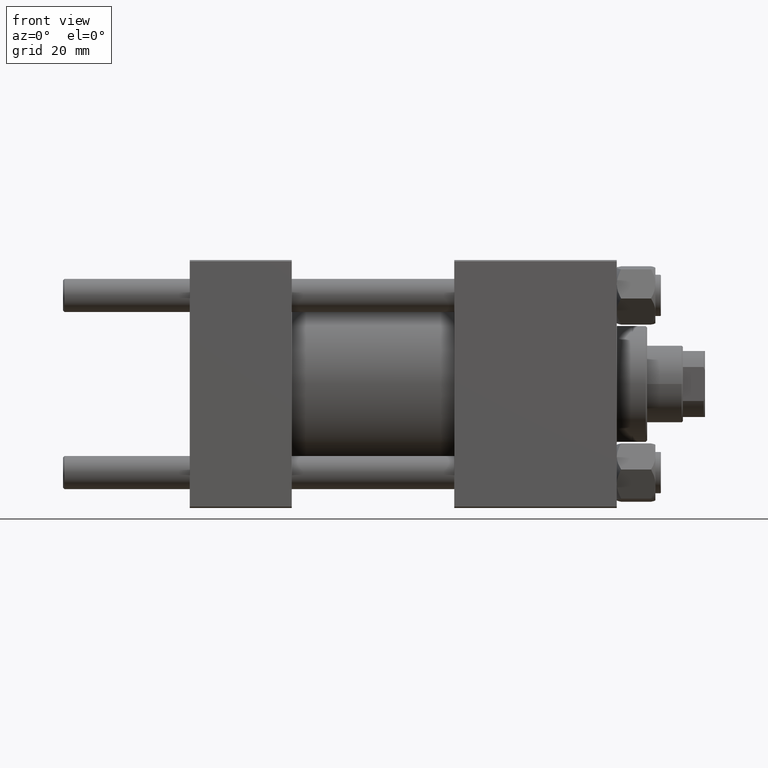
[diagram: clean part render]
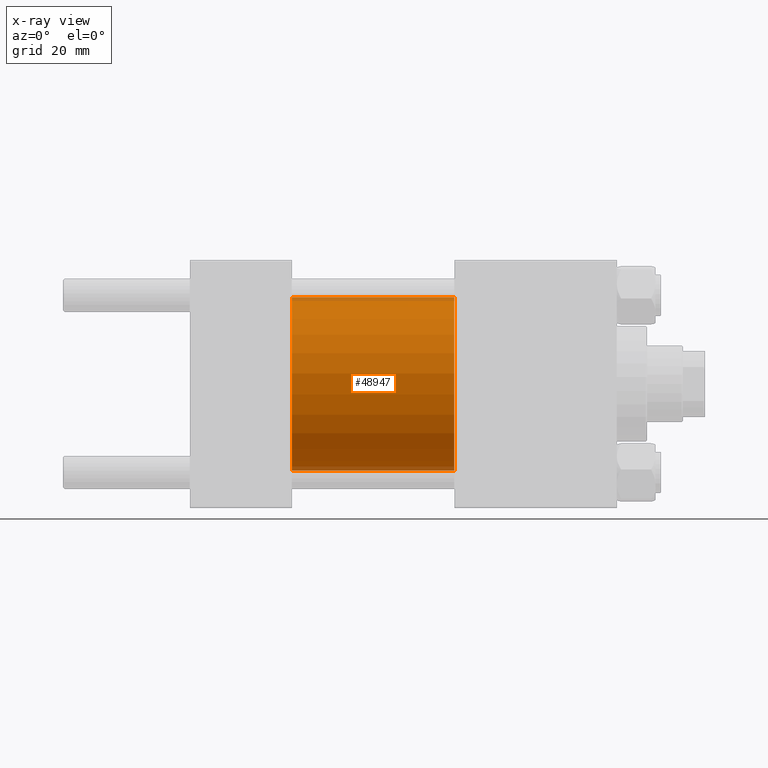
[diagram: x-ray — body ghosted, one internal face saturated and labeled with its STEP entity id]
A machine part, front view, then the same camera in x-ray: the body is ghosted and one INTERNAL B-rep face — a face not visible from any outside direction — is saturated and labeled: STEP entity #48947.
In plain terms, the highlighted cylindrical surface (partial cylindrical patch) has radius 31.5 mm, axis along (-1, -0, -0).
Its self-contained STEP definition (entity closure, byte-faithful):
#1770 = CARTESIAN_POINT ( 'NONE',  ( 96.00000000000000000, 0.000000000000000000, 0.000000000000000000 ) ) ;
#2023 = DIRECTION ( 'NONE',  ( -1.000000000000000000, -0.000000000000000000, -0.000000000000000000 ) ) ;
#2044 = LINE ( 'NONE', #35665, #27281 ) ;
#4976 = CARTESIAN_POINT ( 'NONE',  ( 96.00000000000000000, 0.000000000000000000, 31.50000000000000000 ) ) ;
#5290 = CARTESIAN_POINT ( 'NONE',  ( 37.00000000000000000, 3.857637417314162689E-15, -31.50000000000000000 ) ) ;
#5826 = CIRCLE ( 'NONE', #42143, 31.50000000000000000 ) ;
#8264 = CARTESIAN_POINT ( 'NONE',  ( 37.00000000000000000, 0.000000000000000000, 31.50000000000000000 ) ) ;
#12315 = ORIENTED_EDGE ( 'NONE', *, *, #13008, .T. ) ;
#12612 = CARTESIAN_POINT ( 'NONE',  ( 96.00000000000000000, 3.857637417314162689E-15, -31.50000000000000000 ) ) ;
#12723 = DIRECTION ( 'NONE',  ( 1.000000000000000000, 0.000000000000000000, 0.000000000000000000 ) ) ;
#13008 = EDGE_CURVE ( 'NONE', #47385, #30279, #2044, .T. ) ;
#14136 = VERTEX_POINT ( 'NONE', #4976 ) ;
#16080 = VECTOR ( 'NONE', #40747, 1000.000000000000000 ) ;
#17282 = DIRECTION ( 'NONE',  ( 1.000000000000000000, 0.000000000000000000, 0.000000000000000000 ) ) ;
#17448 = DIRECTION ( 'NONE',  ( 0.000000000000000000, 0.000000000000000000, 1.000000000000000000 ) ) ;
#17962 = FACE_OUTER_BOUND ( 'NONE', #32361, .T. ) ;
#23782 = EDGE_CURVE ( 'NONE', #14136, #47385, #5826, .T. ) ;
#24769 = EDGE_CURVE ( 'NONE', #25573, #30279, #38134, .T. ) ;
#25041 = CYLINDRICAL_SURFACE ( 'NONE', #38048, 31.50000000000000000 ) ;
#25573 = VERTEX_POINT ( 'NONE', #8264 ) ;
#25842 = LINE ( 'NONE', #41243, #16080 ) ;
#27281 = VECTOR ( 'NONE', #44012, 1000.000000000000000 ) ;
#30279 = VERTEX_POINT ( 'NONE', #5290 ) ;
#32325 = ORIENTED_EDGE ( 'NONE', *, *, #24769, .F. ) ;
#32361 = EDGE_LOOP ( 'NONE', ( #36909, #12315, #32325, #35765 ) ) ;
#34963 = DIRECTION ( 'NONE',  ( 0.000000000000000000, 0.000000000000000000, -1.000000000000000000 ) ) ;
#35665 = CARTESIAN_POINT ( 'NONE',  ( 96.00000000000000000, 3.857637417314162689E-15, -31.50000000000000000 ) ) ;
#35765 = ORIENTED_EDGE ( 'NONE', *, *, #40113, .F. ) ;
#36566 = AXIS2_PLACEMENT_3D ( 'NONE', #36989, #17282, #47880 ) ;
#36909 = ORIENTED_EDGE ( 'NONE', *, *, #23782, .T. ) ;
#36989 = CARTESIAN_POINT ( 'NONE',  ( 37.00000000000000000, 0.000000000000000000, 0.000000000000000000 ) ) ;
#38048 = AXIS2_PLACEMENT_3D ( 'NONE', #1770, #2023, #17448 ) ;
#38134 = CIRCLE ( 'NONE', #36566, 31.50000000000000000 ) ;
#40113 = EDGE_CURVE ( 'NONE', #14136, #25573, #25842, .T. ) ;
#40747 = DIRECTION ( 'NONE',  ( -1.000000000000000000, -0.000000000000000000, -0.000000000000000000 ) ) ;
#41243 = CARTESIAN_POINT ( 'NONE',  ( 96.00000000000000000, 0.000000000000000000, 31.50000000000000000 ) ) ;
#42143 = AXIS2_PLACEMENT_3D ( 'NONE', #43305, #12723, #34963 ) ;
#43305 = CARTESIAN_POINT ( 'NONE',  ( 96.00000000000000000, 0.000000000000000000, 0.000000000000000000 ) ) ;
#44012 = DIRECTION ( 'NONE',  ( -1.000000000000000000, -0.000000000000000000, -0.000000000000000000 ) ) ;
#47385 = VERTEX_POINT ( 'NONE', #12612 ) ;
#47880 = DIRECTION ( 'NONE',  ( 0.000000000000000000, 0.000000000000000000, -1.000000000000000000 ) ) ;
#48947 = ADVANCED_FACE ( 'NONE', ( #17962 ), #25041, .F. ) ;